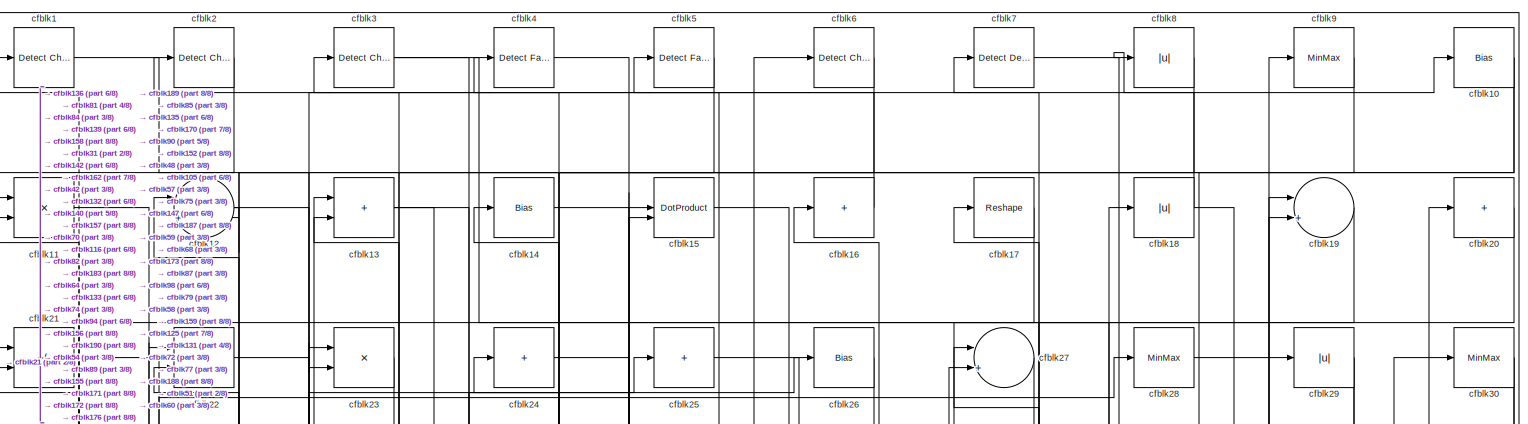
[diagram: root canvas - part 1/8, full width, top band]
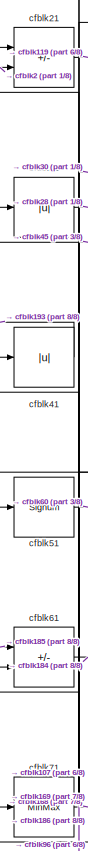
[diagram: root canvas - part 2/8, top left region]
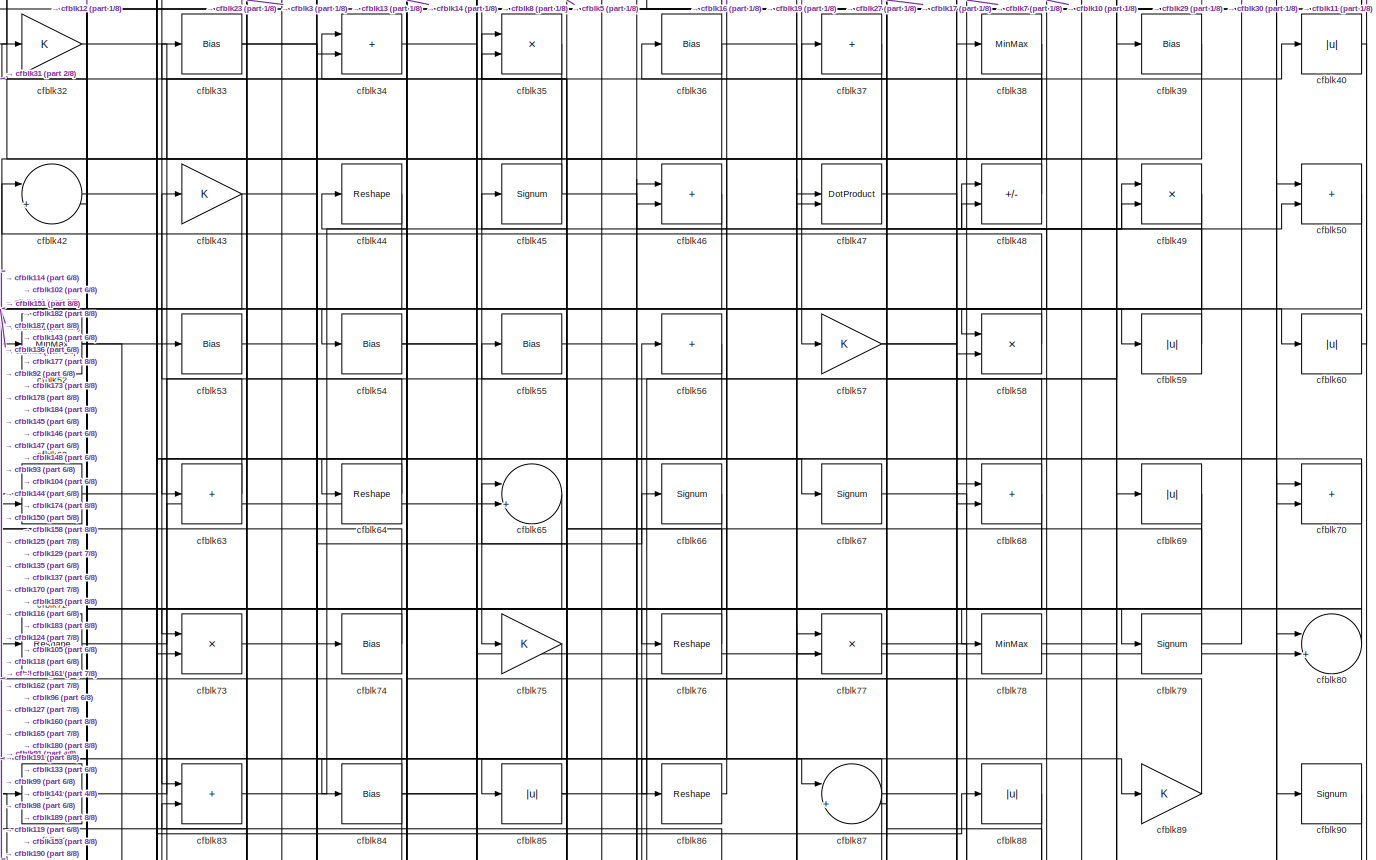
[diagram: root canvas - part 3/8, full width, top band]
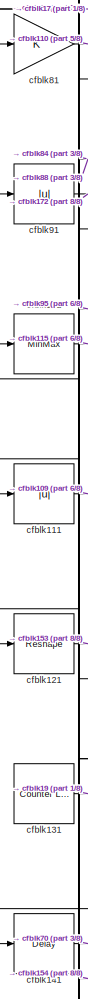
[diagram: root canvas - part 4/8, middle left region]
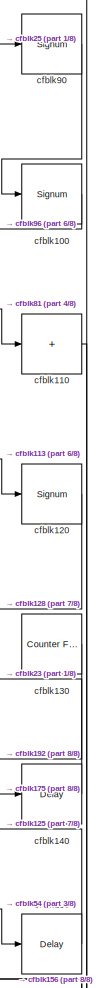
[diagram: root canvas - part 5/8, middle right region]
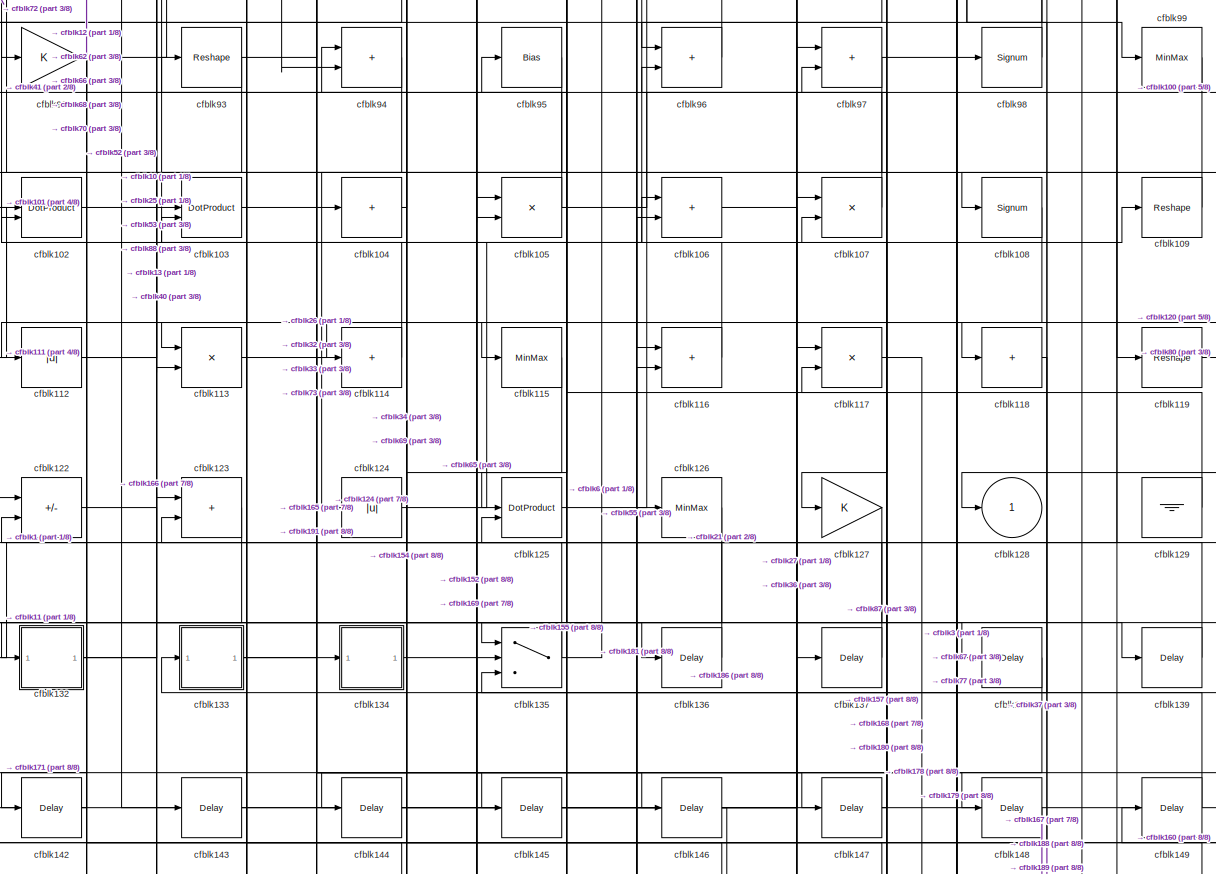
[diagram: root canvas - part 6/8, full width, middle band]
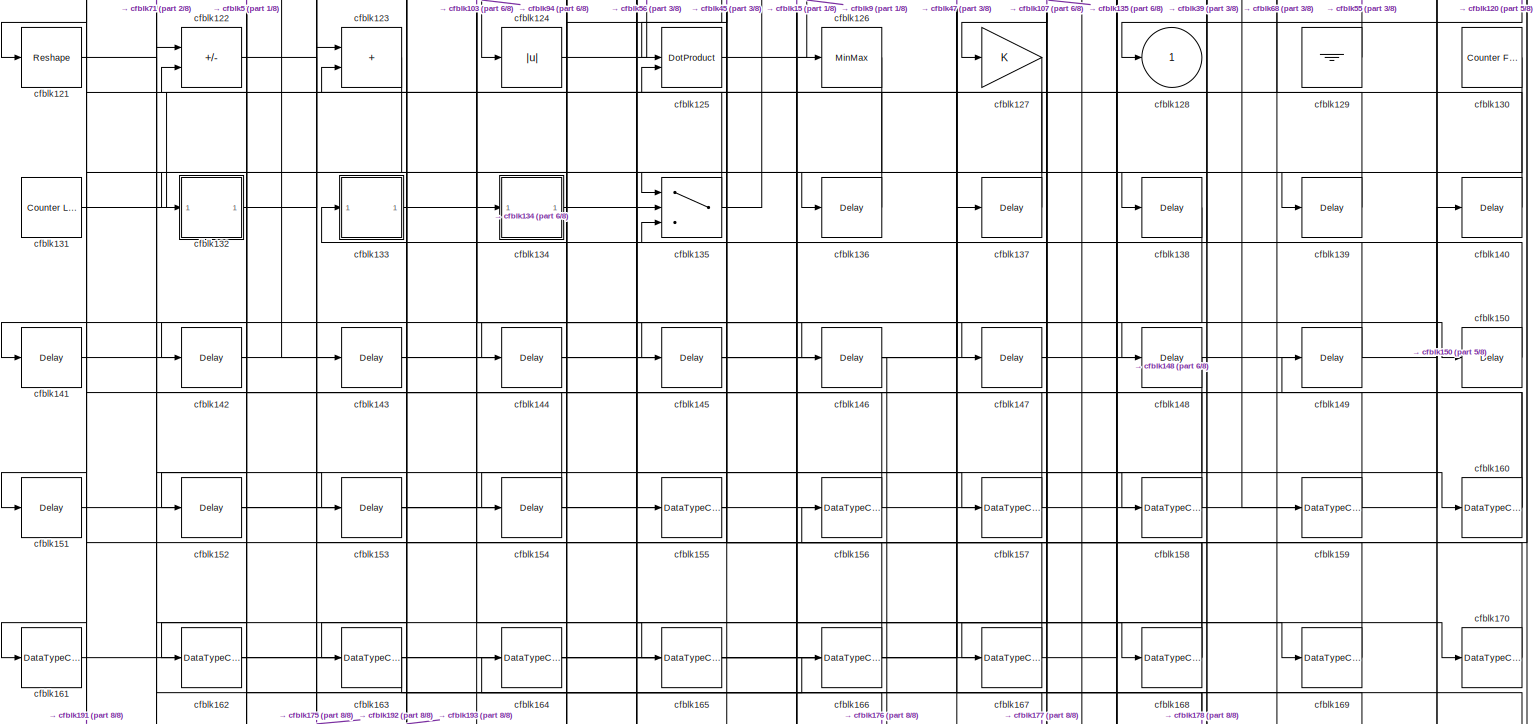
[diagram: root canvas - part 7/8, full width, bottom band]
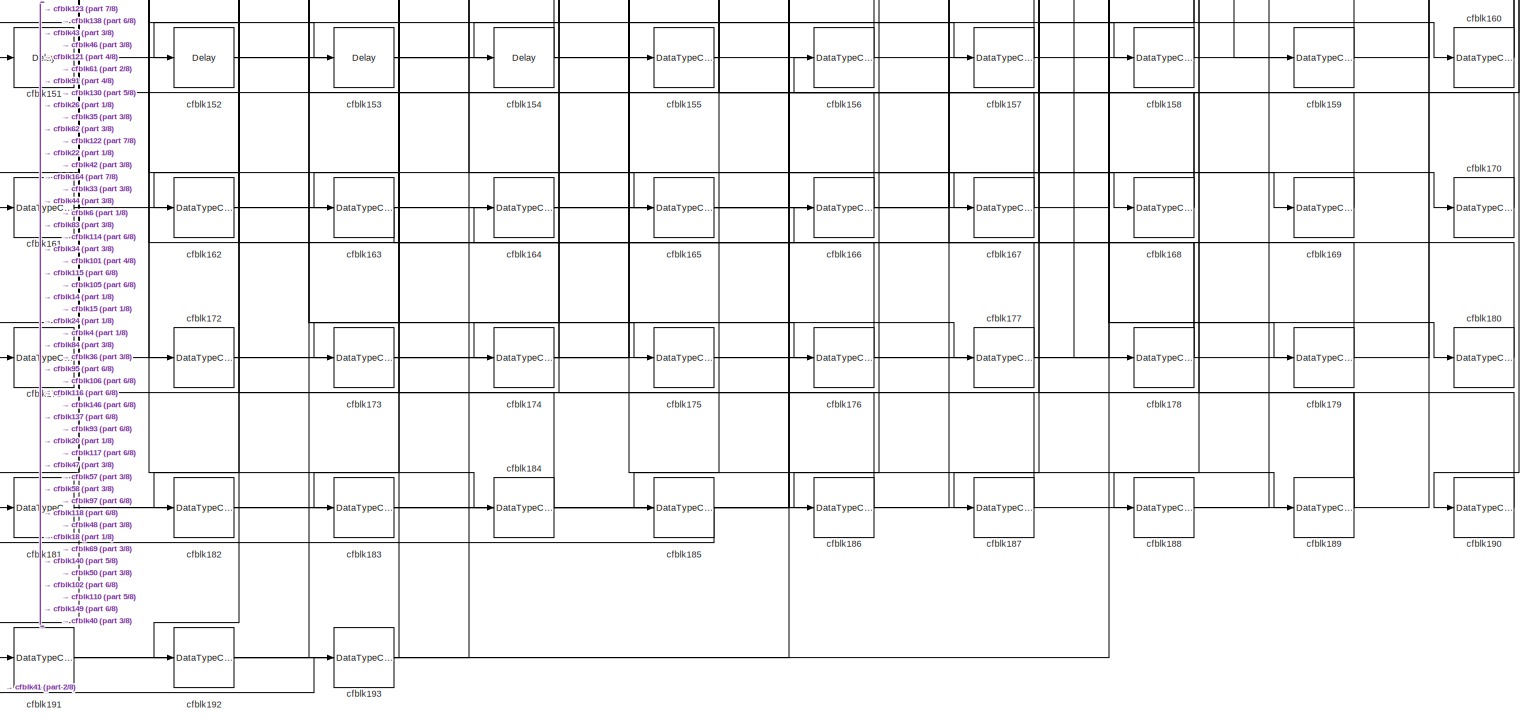
[diagram: root canvas - part 8/8, full width, bottom band]
MODEL slx_9e4176089e17
KIND model
CONFIG AbsTol = auto
CONFIG EnableMultiTasking = off
CONFIG FixedStep = auto
CONFIG MaxStep = auto
CONFIG MinStep = auto
CONFIG RelTol = 1e-3
CONFIG SampleTimeConstraint = Unconstrained
CONFIG SolverName = VariableStepAuto
CONFIG StartTime = 0.0
CONFIG StopTime = 10.0
BLOCK [Reference] cfblk1  REF=simulink/Logic and Bit
Operations/Detect
Change
  LibrarySourceBlock = hdlsllib/Logic and Bit\nOperations/Detect\nChange
  SourceBlock = simulink/Logic and Bit\nOperations/Detect\nChange
  SourceType = Detect Change
BLOCK [Bias] cfblk10
  Bias = 0.0
  SaturateOnIntegerOverflow = off
BLOCK [Signum] cfblk100
BLOCK [MinMax] cfblk101
BLOCK [DotProduct] cfblk102
  OutDataTypeStr = Inherit: Inherit via internal rule
BLOCK [DotProduct] cfblk103
  OutDataTypeStr = Inherit: Inherit via internal rule
BLOCK [Sum] cfblk104
  IconShape = rectangular
  Inputs = +
BLOCK [Product] cfblk105
  Inputs = */
  RndMeth = Zero
  SaturateOnIntegerOverflow = on
BLOCK [Sum] cfblk106
  IconShape = rectangular
BLOCK [Product] cfblk107
  Inputs = */
  RndMeth = Zero
  SaturateOnIntegerOverflow = on
BLOCK [Signum] cfblk108
BLOCK [Reshape] cfblk109
BLOCK [Product] cfblk11
  Inputs = */
  RndMeth = Zero
  SaturateOnIntegerOverflow = on
BLOCK [Sum] cfblk110
  IconShape = rectangular
  Inputs = +
BLOCK [Abs] cfblk111
  SaturateOnIntegerOverflow = off
BLOCK [Abs] cfblk112
  SaturateOnIntegerOverflow = off
BLOCK [Product] cfblk113
  Inputs = */
  RndMeth = Zero
  SaturateOnIntegerOverflow = on
BLOCK [Sum] cfblk114
  IconShape = rectangular
  Inputs = +
BLOCK [MinMax] cfblk115
BLOCK [Sum] cfblk116
  IconShape = rectangular
BLOCK [Product] cfblk117
  Inputs = */
  RndMeth = Zero
  SaturateOnIntegerOverflow = on
BLOCK [Sum] cfblk118
  IconShape = rectangular
  Inputs = +
BLOCK [Reshape] cfblk119
BLOCK [Sum] cfblk12
  Inputs = |++
BLOCK [Signum] cfblk120
BLOCK [Reshape] cfblk121
BLOCK [Sum] cfblk122
  IconShape = rectangular
  Inputs = +-
BLOCK [Sum] cfblk123
  IconShape = rectangular
BLOCK [Abs] cfblk124
  SaturateOnIntegerOverflow = off
BLOCK [DotProduct] cfblk125
  OutDataTypeStr = Inherit: Inherit via internal rule
BLOCK [MinMax] cfblk126
BLOCK [Gain] cfblk127
BLOCK [Outport] cfblk128
  VectorParamsAs1DForOutWhenUnconnected = off
BLOCK [Ground] cfblk129
BLOCK [Sum] cfblk13
  IconShape = rectangular
BLOCK [Reference] cfblk130  REF=hdlsllib/Sources/Counter
Free-Running
  SourceBlock = hdlsllib/Sources/Counter\nFree-Running
  SourceType = Counter Free-Running
BLOCK [Reference] cfblk131  REF=hdlsllib/Sources/Counter
Limited
  SourceBlock = hdlsllib/Sources/Counter\nLimited
  SourceType = Counter Limited
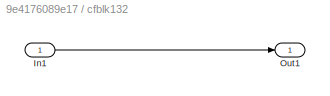
BLOCK [SubSystem] cfblk132
  LibrarySourceBlock = hdlsllib/Ports &\nSubsystems/Subsystem
BLOCK [Inport] cfblk132/In1
BLOCK [Outport] cfblk132/Out1
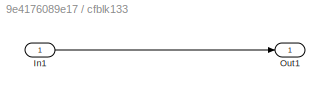
BLOCK [SubSystem] cfblk133
  LibrarySourceBlock = hdlsllib/Ports &\nSubsystems/Subsystem
BLOCK [Inport] cfblk133/In1
BLOCK [Outport] cfblk133/Out1
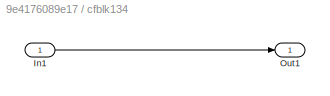
BLOCK [SubSystem] cfblk134
  LibrarySourceBlock = hdlsllib/Ports &\nSubsystems/Subsystem
BLOCK [Inport] cfblk134/In1
BLOCK [Outport] cfblk134/Out1
BLOCK [Switch] cfblk135
  InputSameDT = off
  SaturateOnIntegerOverflow = off
BLOCK [Delay] cfblk136
  InputPortMap = u0
  SampleTime = 1
BLOCK [Delay] cfblk137
  InputPortMap = u0
  SampleTime = 1
BLOCK [Delay] cfblk138
  InputPortMap = u0
  SampleTime = 1
BLOCK [Delay] cfblk139
  InputPortMap = u0
  SampleTime = 1
BLOCK [Bias] cfblk14
  Bias = 0.0
  SaturateOnIntegerOverflow = off
BLOCK [Delay] cfblk140
  InputPortMap = u0
  SampleTime = 1
BLOCK [Delay] cfblk141
  InputPortMap = u0
  SampleTime = 1
BLOCK [Delay] cfblk142
  InputPortMap = u0
  SampleTime = 1
BLOCK [Delay] cfblk143
  InputPortMap = u0
  SampleTime = 1
BLOCK [Delay] cfblk144
  InputPortMap = u0
  SampleTime = 1
BLOCK [Delay] cfblk145
  InputPortMap = u0
  SampleTime = 1
BLOCK [Delay] cfblk146
  InputPortMap = u0
  SampleTime = 1
BLOCK [Delay] cfblk147
  InputPortMap = u0
  SampleTime = 1
BLOCK [Delay] cfblk148
  InputPortMap = u0
  SampleTime = 1
BLOCK [Delay] cfblk149
  InputPortMap = u0
  SampleTime = 1
BLOCK [DotProduct] cfblk15
  OutDataTypeStr = Inherit: Inherit via internal rule
BLOCK [Delay] cfblk150
  InputPortMap = u0
  SampleTime = 1
BLOCK [Delay] cfblk151
  InputPortMap = u0
  SampleTime = 1
BLOCK [Delay] cfblk152
  InputPortMap = u0
  SampleTime = 1
BLOCK [Delay] cfblk153
  InputPortMap = u0
  SampleTime = 1
BLOCK [Delay] cfblk154
  InputPortMap = u0
  SampleTime = 1
BLOCK [DataTypeConversion] cfblk155
  OutDataTypeStr = uint8
  RndMeth = Floor
  SaturateOnIntegerOverflow = off
BLOCK [DataTypeConversion] cfblk156
  OutDataTypeStr = uint8
  RndMeth = Floor
  SaturateOnIntegerOverflow = off
BLOCK [DataTypeConversion] cfblk157
  OutDataTypeStr = uint8
  RndMeth = Floor
  SaturateOnIntegerOverflow = off
BLOCK [DataTypeConversion] cfblk158
  OutDataTypeStr = uint8
  RndMeth = Floor
  SaturateOnIntegerOverflow = off
BLOCK [DataTypeConversion] cfblk159
  OutDataTypeStr = uint8
  RndMeth = Floor
  SaturateOnIntegerOverflow = off
BLOCK [Sum] cfblk16
  IconShape = rectangular
  Inputs = +
BLOCK [DataTypeConversion] cfblk160
  RndMeth = Floor
  SaturateOnIntegerOverflow = off
BLOCK [DataTypeConversion] cfblk161
  OutDataTypeStr = uint8
  RndMeth = Floor
  SaturateOnIntegerOverflow = off
BLOCK [DataTypeConversion] cfblk162
  OutDataTypeStr = uint8
  RndMeth = Floor
  SaturateOnIntegerOverflow = off
BLOCK [DataTypeConversion] cfblk163
  OutDataTypeStr = uint8
  RndMeth = Floor
  SaturateOnIntegerOverflow = off
BLOCK [DataTypeConversion] cfblk164
  OutDataTypeStr = uint8
  RndMeth = Floor
  SaturateOnIntegerOverflow = off
BLOCK [DataTypeConversion] cfblk165
  OutDataTypeStr = uint8
  RndMeth = Floor
  SaturateOnIntegerOverflow = off
BLOCK [DataTypeConversion] cfblk166
  OutDataTypeStr = uint8
  RndMeth = Floor
  SaturateOnIntegerOverflow = off
BLOCK [DataTypeConversion] cfblk167
  OutDataTypeStr = uint8
  RndMeth = Floor
  SaturateOnIntegerOverflow = off
BLOCK [DataTypeConversion] cfblk168
  RndMeth = Floor
  SaturateOnIntegerOverflow = off
BLOCK [DataTypeConversion] cfblk169
  OutDataTypeStr = uint8
  RndMeth = Floor
  SaturateOnIntegerOverflow = off
BLOCK [Reshape] cfblk17
BLOCK [DataTypeConversion] cfblk170
  OutDataTypeStr = uint8
  RndMeth = Floor
  SaturateOnIntegerOverflow = off
BLOCK [DataTypeConversion] cfblk171
  OutDataTypeStr = uint8
  RndMeth = Floor
  SaturateOnIntegerOverflow = off
BLOCK [DataTypeConversion] cfblk172
  OutDataTypeStr = uint8
  RndMeth = Floor
  SaturateOnIntegerOverflow = off
BLOCK [DataTypeConversion] cfblk173
  OutDataTypeStr = uint8
  RndMeth = Floor
  SaturateOnIntegerOverflow = off
BLOCK [DataTypeConversion] cfblk174
  OutDataTypeStr = uint8
  RndMeth = Floor
  SaturateOnIntegerOverflow = off
BLOCK [DataTypeConversion] cfblk175
  OutDataTypeStr = uint8
  RndMeth = Floor
  SaturateOnIntegerOverflow = off
BLOCK [DataTypeConversion] cfblk176
  OutDataTypeStr = uint8
  RndMeth = Floor
  SaturateOnIntegerOverflow = off
BLOCK [DataTypeConversion] cfblk177
  OutDataTypeStr = uint8
  RndMeth = Floor
  SaturateOnIntegerOverflow = off
BLOCK [DataTypeConversion] cfblk178
  RndMeth = Floor
  SaturateOnIntegerOverflow = off
BLOCK [DataTypeConversion] cfblk179
  OutDataTypeStr = uint8
  RndMeth = Floor
  SaturateOnIntegerOverflow = off
BLOCK [Abs] cfblk18
  SaturateOnIntegerOverflow = off
BLOCK [DataTypeConversion] cfblk180
  OutDataTypeStr = uint8
  RndMeth = Floor
  SaturateOnIntegerOverflow = off
BLOCK [DataTypeConversion] cfblk181
  RndMeth = Floor
  SaturateOnIntegerOverflow = off
BLOCK [DataTypeConversion] cfblk182
  OutDataTypeStr = uint8
  RndMeth = Floor
  SaturateOnIntegerOverflow = off
BLOCK [DataTypeConversion] cfblk183
  OutDataTypeStr = uint8
  RndMeth = Floor
  SaturateOnIntegerOverflow = off
BLOCK [DataTypeConversion] cfblk184
  RndMeth = Floor
  SaturateOnIntegerOverflow = off
BLOCK [DataTypeConversion] cfblk185
  OutDataTypeStr = uint8
  RndMeth = Floor
  SaturateOnIntegerOverflow = off
BLOCK [DataTypeConversion] cfblk186
  OutDataTypeStr = uint8
  RndMeth = Floor
  SaturateOnIntegerOverflow = off
BLOCK [DataTypeConversion] cfblk187
  OutDataTypeStr = uint8
  RndMeth = Floor
  SaturateOnIntegerOverflow = off
BLOCK [DataTypeConversion] cfblk188
  OutDataTypeStr = uint8
  RndMeth = Floor
  SaturateOnIntegerOverflow = off
BLOCK [DataTypeConversion] cfblk189
  RndMeth = Floor
  SaturateOnIntegerOverflow = off
BLOCK [Sum] cfblk19
  Inputs = |++
BLOCK [DataTypeConversion] cfblk190
  OutDataTypeStr = uint8
  RndMeth = Floor
  SaturateOnIntegerOverflow = off
BLOCK [DataTypeConversion] cfblk191
  RndMeth = Floor
  SaturateOnIntegerOverflow = off
BLOCK [DataTypeConversion] cfblk192
  OutDataTypeStr = uint8
  RndMeth = Floor
  SaturateOnIntegerOverflow = off
BLOCK [DataTypeConversion] cfblk193
  OutDataTypeStr = uint8
  RndMeth = Floor
  SaturateOnIntegerOverflow = off
BLOCK [Reference] cfblk2  REF=simulink/Logic and Bit
Operations/Detect
Change
  LibrarySourceBlock = hdlsllib/Logic and Bit\nOperations/Detect\nChange
  SourceBlock = simulink/Logic and Bit\nOperations/Detect\nChange
  SourceType = Detect Change
BLOCK [Sum] cfblk20
  IconShape = rectangular
  Inputs = +
BLOCK [Sum] cfblk21
  IconShape = rectangular
  Inputs = +-
BLOCK [Product] cfblk22
  Inputs = */
  RndMeth = Zero
  SaturateOnIntegerOverflow = on
BLOCK [Product] cfblk23
  Inputs = */
  RndMeth = Zero
  SaturateOnIntegerOverflow = on
BLOCK [Sum] cfblk24
  IconShape = rectangular
  Inputs = +
BLOCK [Sum] cfblk25
  IconShape = rectangular
  Inputs = +
BLOCK [Bias] cfblk26
  Bias = 0.0
  SaturateOnIntegerOverflow = off
BLOCK [Sum] cfblk27
  Inputs = |++
BLOCK [MinMax] cfblk28
BLOCK [Abs] cfblk29
  SaturateOnIntegerOverflow = off
BLOCK [Reference] cfblk3  REF=simulink/Logic and Bit
Operations/Detect
Change
  LibrarySourceBlock = hdlsllib/Logic and Bit\nOperations/Detect\nChange
  SourceBlock = simulink/Logic and Bit\nOperations/Detect\nChange
  SourceType = Detect Change
BLOCK [MinMax] cfblk30
BLOCK [Abs] cfblk31
  SaturateOnIntegerOverflow = off
BLOCK [Gain] cfblk32
BLOCK [Bias] cfblk33
  Bias = 0.0
  SaturateOnIntegerOverflow = off
BLOCK [Sum] cfblk34
  IconShape = rectangular
BLOCK [Product] cfblk35
  Inputs = */
  RndMeth = Zero
  SaturateOnIntegerOverflow = on
BLOCK [Bias] cfblk36
  Bias = 0.0
  SaturateOnIntegerOverflow = off
BLOCK [Sum] cfblk37
  IconShape = rectangular
  Inputs = +
BLOCK [MinMax] cfblk38
BLOCK [Bias] cfblk39
  Bias = 0.0
  SaturateOnIntegerOverflow = off
BLOCK [Reference] cfblk4  REF=hdlsllib/Logic and Bit
Operations/Detect Fall
Nonpositive
  SourceBlock = hdlsllib/Logic and Bit\nOperations/Detect Fall\nNonpositive
  SourceType = Detect Fall Nonpositive
BLOCK [Abs] cfblk40
  SaturateOnIntegerOverflow = off
BLOCK [Abs] cfblk41
  SaturateOnIntegerOverflow = off
BLOCK [Sum] cfblk42
  Inputs = |++
BLOCK [Gain] cfblk43
BLOCK [Reshape] cfblk44
BLOCK [Signum] cfblk45
BLOCK [Sum] cfblk46
  IconShape = rectangular
BLOCK [DotProduct] cfblk47
  OutDataTypeStr = Inherit: Inherit via internal rule
BLOCK [Sum] cfblk48
  IconShape = rectangular
  Inputs = +-
BLOCK [Product] cfblk49
  Inputs = */
  RndMeth = Zero
  SaturateOnIntegerOverflow = on
BLOCK [Reference] cfblk5  REF=hdlsllib/Logic and Bit
Operations/Detect Fall
Nonpositive
  SourceBlock = hdlsllib/Logic and Bit\nOperations/Detect Fall\nNonpositive
  SourceType = Detect Fall Nonpositive
BLOCK [Sum] cfblk50
  IconShape = rectangular
BLOCK [Signum] cfblk51
BLOCK [MinMax] cfblk52
BLOCK [Bias] cfblk53
  Bias = 0.0
  SaturateOnIntegerOverflow = off
BLOCK [Bias] cfblk54
  Bias = 0.0
  SaturateOnIntegerOverflow = off
BLOCK [Bias] cfblk55
  Bias = 0.0
  SaturateOnIntegerOverflow = off
BLOCK [Sum] cfblk56
  IconShape = rectangular
  Inputs = +
BLOCK [Gain] cfblk57
BLOCK [Product] cfblk58
  Inputs = */
  RndMeth = Zero
  SaturateOnIntegerOverflow = on
BLOCK [Abs] cfblk59
  SaturateOnIntegerOverflow = off
BLOCK [Reference] cfblk6  REF=simulink/Logic and Bit
Operations/Detect
Change
  LibrarySourceBlock = hdlsllib/Logic and Bit\nOperations/Detect\nChange
  SourceBlock = simulink/Logic and Bit\nOperations/Detect\nChange
  SourceType = Detect Change
BLOCK [Abs] cfblk60
  SaturateOnIntegerOverflow = off
BLOCK [Sum] cfblk61
  IconShape = rectangular
  Inputs = +-
BLOCK [DotProduct] cfblk62
  OutDataTypeStr = Inherit: Inherit via internal rule
BLOCK [Sum] cfblk63
  IconShape = rectangular
  Inputs = +
BLOCK [Reshape] cfblk64
BLOCK [Sum] cfblk65
  Inputs = |++
BLOCK [Signum] cfblk66
BLOCK [Signum] cfblk67
BLOCK [Sum] cfblk68
  IconShape = rectangular
BLOCK [Abs] cfblk69
  SaturateOnIntegerOverflow = off
BLOCK [Reference] cfblk7  REF=simulink/Logic and Bit
Operations/Detect
Decrease
  LibrarySourceBlock = hdlsllib/Logic and Bit\nOperations/Detect\nDecrease
  SourceBlock = simulink/Logic and Bit\nOperations/Detect\nDecrease
  SourceType = Detect Decrease
BLOCK [Sum] cfblk70
  IconShape = rectangular
BLOCK [MinMax] cfblk71
BLOCK [Reshape] cfblk72
BLOCK [Product] cfblk73
  Inputs = */
  RndMeth = Zero
  SaturateOnIntegerOverflow = on
BLOCK [Bias] cfblk74
  Bias = 0.0
  SaturateOnIntegerOverflow = off
BLOCK [Gain] cfblk75
BLOCK [Reshape] cfblk76
BLOCK [Product] cfblk77
  Inputs = */
  RndMeth = Zero
  SaturateOnIntegerOverflow = on
BLOCK [MinMax] cfblk78
BLOCK [Signum] cfblk79
BLOCK [Abs] cfblk8
  SaturateOnIntegerOverflow = off
BLOCK [Sum] cfblk80
  Inputs = |++
BLOCK [Gain] cfblk81
BLOCK [Signum] cfblk82
BLOCK [Sum] cfblk83
  IconShape = rectangular
BLOCK [Bias] cfblk84
  Bias = 0.0
  SaturateOnIntegerOverflow = off
BLOCK [Abs] cfblk85
  SaturateOnIntegerOverflow = off
BLOCK [Reshape] cfblk86
BLOCK [Sum] cfblk87
  Inputs = |++
BLOCK [Abs] cfblk88
  SaturateOnIntegerOverflow = off
BLOCK [Gain] cfblk89
BLOCK [MinMax] cfblk9
BLOCK [Signum] cfblk90
BLOCK [Abs] cfblk91
  SaturateOnIntegerOverflow = off
BLOCK [Gain] cfblk92
BLOCK [Reshape] cfblk93
BLOCK [Sum] cfblk94
  IconShape = rectangular
BLOCK [Bias] cfblk95
  Bias = 0.0
  SaturateOnIntegerOverflow = off
BLOCK [Sum] cfblk96
  IconShape = rectangular
BLOCK [Sum] cfblk97
  IconShape = rectangular
BLOCK [Signum] cfblk98
BLOCK [MinMax] cfblk99
LINE cfblk100:1 -> cfblk96:2
LINE cfblk101:1 -> cfblk115:1
LINE cfblk102:1 -> cfblk53:1
LINE cfblk103:1 -> cfblk165:1
LINE cfblk104:1 -> cfblk34:1
NET cfblk105:1 -> cfblk27:2, cfblk62:1
LINE cfblk106:1 -> cfblk138:1
LINE cfblk107:1 -> cfblk41:1
LINE cfblk108:1 -> cfblk142:1
LINE cfblk109:1 -> cfblk108:1
NET cfblk10:1 -> cfblk54:1, cfblk58:1
LINE cfblk110:1 -> cfblk156:1
LINE cfblk111:1 -> cfblk109:1
NET cfblk112:1 -> cfblk106:1, cfblk88:1
LINE cfblk113:1 -> cfblk120:1
LINE cfblk114:1 -> cfblk72:1
LINE cfblk115:1 -> cfblk154:1
LINE cfblk116:1 -> cfblk13:1
LINE cfblk117:1 -> cfblk178:1
LINE cfblk118:1 -> cfblk188:1
LINE cfblk119:1 -> cfblk80:1
LINE cfblk11:1 -> cfblk139:1
LINE cfblk120:1 -> cfblk128:1
LINE cfblk121:1 -> cfblk153:1
LINE cfblk122:1 -> cfblk175:1
LINE cfblk123:1 -> cfblk191:1
LINE cfblk124:1 -> cfblk56:1
LINE cfblk125:1 -> cfblk9:1
LINE cfblk126:1 -> cfblk163:1
LINE cfblk127:1 -> cfblk161:1
LINE cfblk129:1 -> cfblk55:1
NET cfblk12:1 -> cfblk42:2, cfblk70:2
LINE cfblk130:1 -> cfblk192:1
LINE cfblk131:1 -> cfblk19:1
LINE cfblk132/In1:1 -> cfblk132/Out1:1
NET cfblk132:1 -> cfblk10:1, cfblk25:1
LINE cfblk133/In1:1 -> cfblk133/Out1:1
NET cfblk133:1 -> cfblk134:1, cfblk26:1
LINE cfblk134/In1:1 -> cfblk134/Out1:1
LINE cfblk134:1 -> cfblk169:1
NET cfblk135:1 -> cfblk6:1, cfblk94:1
LINE cfblk136:1 -> cfblk1:1
LINE cfblk137:1 -> cfblk65:1
LINE cfblk138:1 -> cfblk171:1
LINE cfblk139:1 -> cfblk13:2
NET cfblk13:1 -> cfblk74:1, cfblk94:2
LINE cfblk140:1 -> cfblk23:1
LINE cfblk141:1 -> cfblk70:1
LINE cfblk142:1 -> cfblk12:1
LINE cfblk143:1 -> cfblk107:1
LINE cfblk144:1 -> cfblk97:1
LINE cfblk145:1 -> cfblk77:1
LINE cfblk146:1 -> cfblk186:1
LINE cfblk147:1 -> cfblk27:1
LINE cfblk148:1 -> cfblk167:1
LINE cfblk149:1 -> cfblk135:2
LINE cfblk14:1 -> cfblk176:1
LINE cfblk150:1 -> cfblk125:2
LINE cfblk151:1 -> cfblk34:2
LINE cfblk152:1 -> cfblk105:1
LINE cfblk153:1 -> cfblk50:1
LINE cfblk154:1 -> cfblk101:1
LINE cfblk155:1 -> cfblk95:1
LINE cfblk156:1 -> cfblk4:1
LINE cfblk157:1 -> cfblk93:1
LINE cfblk158:1 -> cfblk22:1
LINE cfblk159:1 -> cfblk22:2
LINE cfblk15:1 -> cfblk170:1
NET cfblk160:1 -> cfblk102:2, cfblk149:1
LINE cfblk161:1 -> cfblk47:1
LINE cfblk162:1 -> cfblk47:2
LINE cfblk163:1 -> cfblk166:1
LINE cfblk164:1 -> cfblk126:1
LINE cfblk165:1 -> cfblk68:1
LINE cfblk166:1 -> cfblk103:1
LINE cfblk167:1 -> cfblk103:2
NET cfblk168:1 -> cfblk107:2, cfblk135:3
LINE cfblk169:1 -> cfblk71:1
LINE cfblk16:1 -> cfblk2:1
LINE cfblk170:1 -> cfblk45:1
LINE cfblk171:1 -> cfblk15:1
LINE cfblk172:1 -> cfblk15:2
LINE cfblk173:1 -> cfblk18:1
LINE cfblk174:1 -> cfblk44:1
LINE cfblk175:1 -> cfblk140:1
LINE cfblk176:1 -> cfblk122:1
LINE cfblk177:1 -> cfblk122:2
NET cfblk178:1 -> cfblk164:1, cfblk83:2
LINE cfblk179:1 -> cfblk117:1
LINE cfblk17:1 -> cfblk81:1
LINE cfblk180:1 -> cfblk117:2
NET cfblk181:1 -> cfblk106:2, cfblk137:1
LINE cfblk182:1 -> cfblk46:1
LINE cfblk183:1 -> cfblk46:2
NET cfblk184:1 -> cfblk33:1, cfblk69:1
LINE cfblk185:1 -> cfblk61:1
LINE cfblk186:1 -> cfblk61:2
LINE cfblk187:1 -> cfblk62:2
LINE cfblk188:1 -> cfblk20:1
NET cfblk189:1 -> cfblk48:2, cfblk97:2
NET cfblk18:1 -> cfblk159:1, cfblk8:1
LINE cfblk190:1 -> cfblk24:1
NET cfblk191:1 -> cfblk114:1, cfblk116:2, cfblk58:2
LINE cfblk192:1 -> cfblk123:1
LINE cfblk193:1 -> cfblk123:2
LINE cfblk19:1 -> cfblk57:1
LINE cfblk1:1 -> cfblk23:2
LINE cfblk20:1 -> cfblk187:1
LINE cfblk21:1 -> cfblk119:1
LINE cfblk22:1 -> cfblk157:1
LINE cfblk23:1 -> cfblk82:1
LINE cfblk24:1 -> cfblk189:1
LINE cfblk25:1 -> cfblk90:1
LINE cfblk26:1 -> cfblk152:1
LINE cfblk27:1 -> cfblk75:1
LINE cfblk28:1 -> cfblk29:1
NET cfblk29:1 -> cfblk77:2, cfblk87:2
LINE cfblk2:1 -> cfblk21:2
NET cfblk30:1 -> cfblk51:1, cfblk64:1
LINE cfblk31:1 -> cfblk28:1
LINE cfblk32:1 -> cfblk104:1
NET cfblk33:1 -> cfblk146:1, cfblk147:1
LINE cfblk34:1 -> cfblk59:1
LINE cfblk35:1 -> cfblk182:1
NET cfblk36:1 -> cfblk118:1, cfblk185:1
LINE cfblk37:1 -> cfblk135:1
NET cfblk38:1 -> cfblk52:1, cfblk86:1
LINE cfblk39:1 -> cfblk127:1
NET cfblk3:1 -> cfblk87:1, cfblk98:1
LINE cfblk40:1 -> cfblk190:1
LINE cfblk41:1 -> cfblk193:1
LINE cfblk42:1 -> cfblk177:1
NET cfblk43:1 -> cfblk151:1, cfblk78:1
LINE cfblk44:1 -> cfblk173:1
NET cfblk45:1 -> cfblk31:1, cfblk50:2
LINE cfblk46:1 -> cfblk181:1
LINE cfblk47:1 -> cfblk160:1
LINE cfblk48:1 -> cfblk16:1
NET cfblk49:1 -> cfblk68:2, cfblk76:1
LINE cfblk4:1 -> cfblk155:1
LINE cfblk50:1 -> cfblk174:1
LINE cfblk51:1 -> cfblk60:1
NET cfblk52:1 -> cfblk143:1, cfblk67:1
LINE cfblk53:1 -> cfblk148:1
NET cfblk54:1 -> cfblk150:1, cfblk89:1
LINE cfblk55:1 -> cfblk116:1
LINE cfblk56:1 -> cfblk125:1
NET cfblk57:1 -> cfblk180:1, cfblk49:1
LINE cfblk58:1 -> cfblk42:1
LINE cfblk59:1 -> cfblk7:1
LINE cfblk5:1 -> cfblk162:1
LINE cfblk60:1 -> cfblk11:1
LINE cfblk61:1 -> cfblk184:1
LINE cfblk62:1 -> cfblk136:1
LINE cfblk63:1 -> cfblk43:1
LINE cfblk64:1 -> cfblk3:1
LINE cfblk65:1 -> cfblk105:2
LINE cfblk66:1 -> cfblk102:1
LINE cfblk67:1 -> cfblk99:1
NET cfblk68:1 -> cfblk112:1, cfblk17:1, cfblk85:1
NET cfblk69:1 -> cfblk144:1, cfblk73:2
LINE cfblk6:1 -> cfblk183:1
NET cfblk70:1 -> cfblk63:1, cfblk92:1
LINE cfblk71:1 -> cfblk168:1
LINE cfblk72:1 -> cfblk19:2
LINE cfblk73:1 -> cfblk145:1
LINE cfblk74:1 -> cfblk32:1
LINE cfblk75:1 -> cfblk91:1
LINE cfblk76:1 -> cfblk35:2
LINE cfblk77:1 -> cfblk133:1
LINE cfblk78:1 -> cfblk39:1
NET cfblk79:1 -> cfblk30:1, cfblk35:1
LINE cfblk7:1 -> cfblk79:1
LINE cfblk80:1 -> cfblk73:1
LINE cfblk81:1 -> cfblk110:1
LINE cfblk82:1 -> cfblk65:2
LINE cfblk83:1 -> cfblk48:1
NET cfblk84:1 -> cfblk11:2, cfblk121:1, cfblk158:1, cfblk80:2
NET cfblk85:1 -> cfblk38:1, cfblk5:1
LINE cfblk86:1 -> cfblk36:1
NET cfblk87:1 -> cfblk49:2, cfblk83:1, cfblk96:1
LINE cfblk88:1 -> cfblk141:1
LINE cfblk89:1 -> cfblk14:1
LINE cfblk8:1 -> cfblk84:1
LINE cfblk90:1 -> cfblk100:1
LINE cfblk91:1 -> cfblk172:1
LINE cfblk92:1 -> cfblk40:1
NET cfblk93:1 -> cfblk113:2, cfblk66:1
LINE cfblk94:1 -> cfblk124:1
LINE cfblk95:1 -> cfblk111:1
LINE cfblk96:1 -> cfblk21:1
NET cfblk97:1 -> cfblk132:1, cfblk179:1
LINE cfblk98:1 -> cfblk37:1
LINE cfblk99:1 -> cfblk113:1
LINE cfblk9:1 -> cfblk12:2
note: NET lines group one-source signal fan-out (src -> all destinations, sorted); 1:1 wires keep LINE
